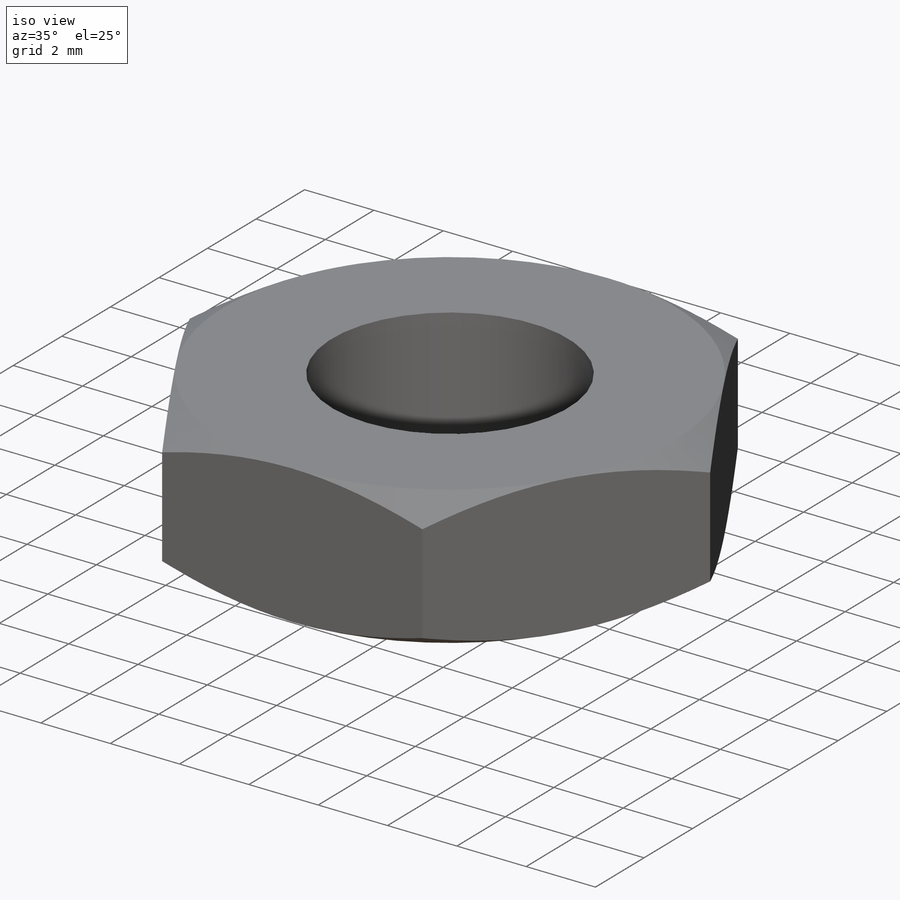
[diagram: iso view]
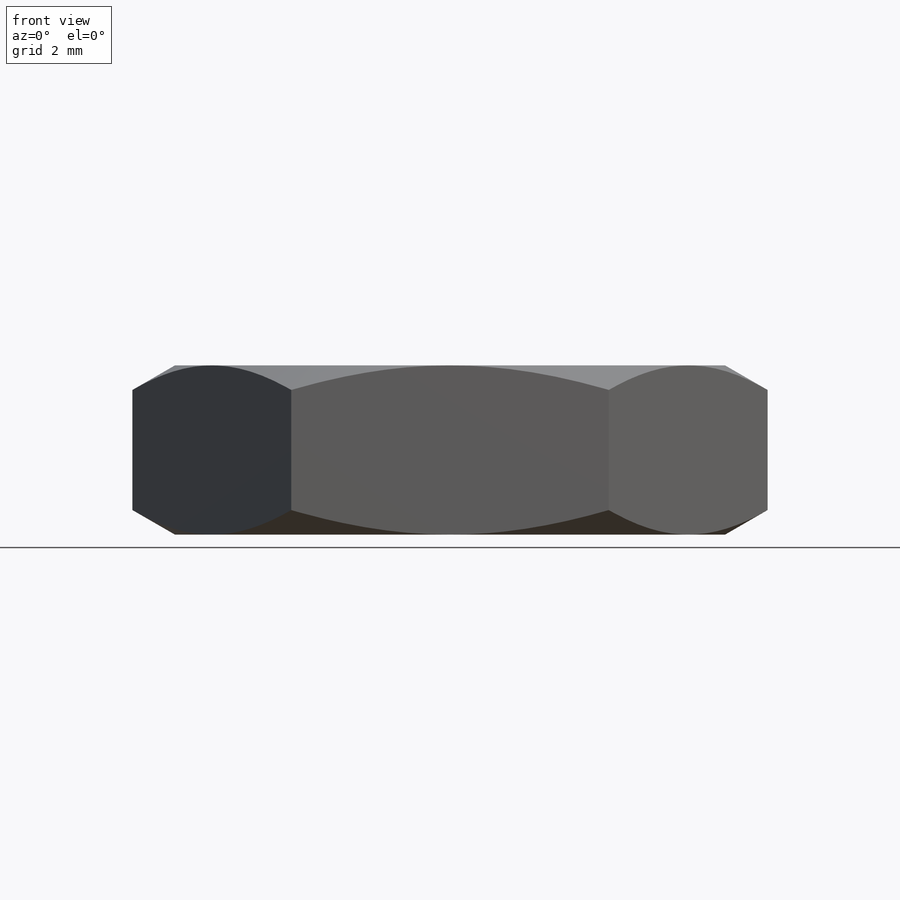
[diagram: front view]
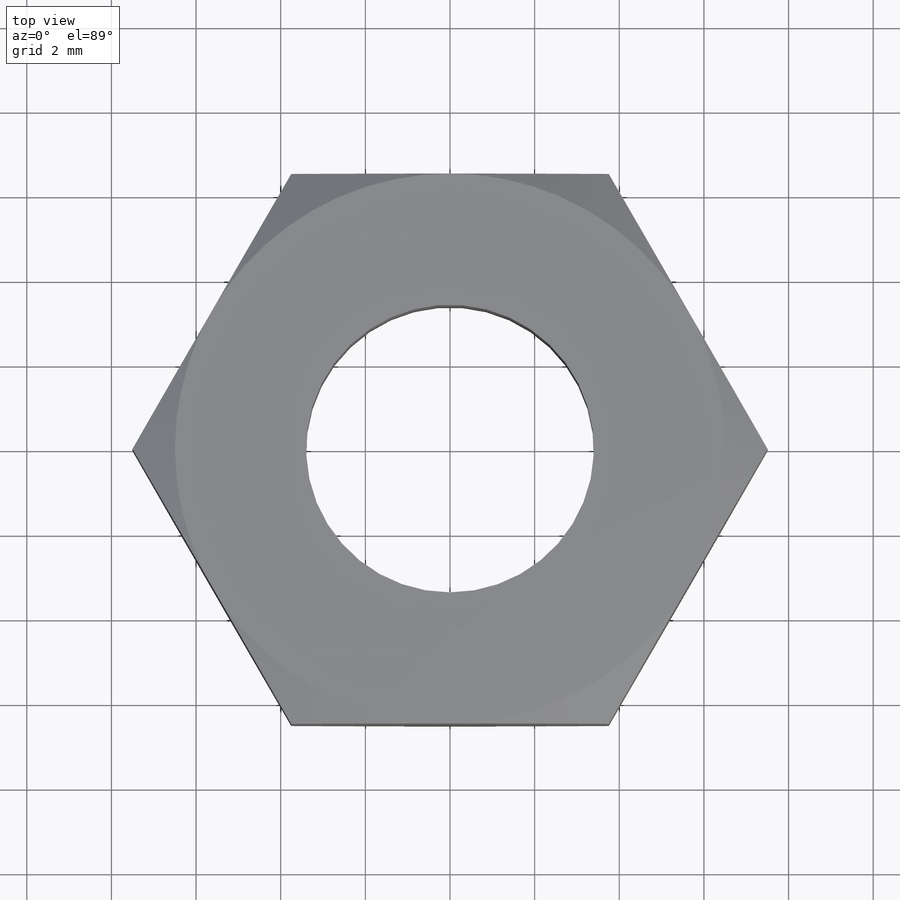
[diagram: top view]
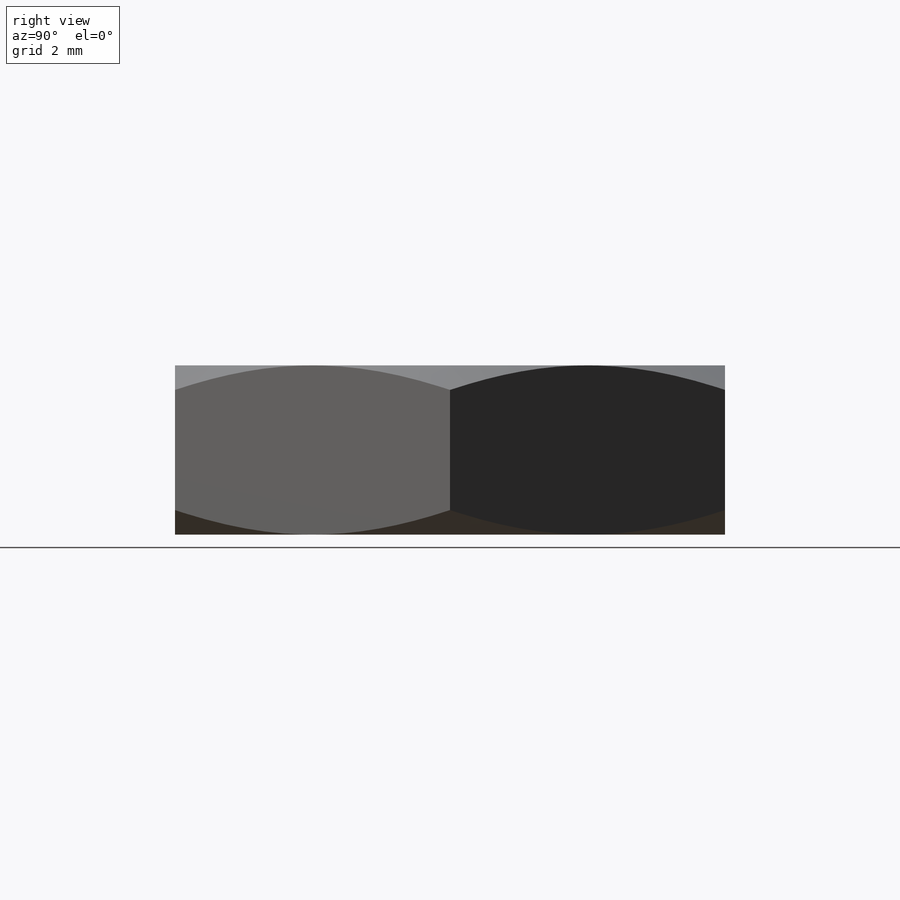
[diagram: right view]
SOLIDWORKS PART (.sldprt)
format: sldprt  version: not decoded by parser v0  size: 207,360 bytes
history: native  units: mm
features: sketch x5, cut_extrude x2, material x1, extrude x1, hole x1, thread x1 (+12 scaffold rows collapsed)
feature tree (23):
  scaffold x12  (default folders/planes/origin — collapsed)
  material  "Material <not specified>"
  sketch  "Sketch1"  dims[D1=13.0mm]
  extrude  "Boss-Extrude1"  Depth=4mm
  sketch  "Sketch2"
  cut_extrude  "Cut-Extrude1"  Depth=4mm
  sketch  "Sketch3"
  cut_extrude  "Cut-Extrude2"  Depth=4mm
  hole  "M8x1.25 Tapped Hole1"  [1 undecoded]
  sketch  "Sketch6"
  thread  "Hole Thread1"  Diameter=8mm  [1 undecoded]
  sketch  "Sketch5"  dims[hole-wizard template sketch: 60 standard entries collapsed; hole parameters kept: c18.Thru Tap Drill Depth=4.0mm]
decode coverage: 6 of 10 modeling features carry decoded parameters
note: ~ marks probable driven/reference dimensions
note: 2 parameter values undecoded
note: suppression state not decoded; provenance and decode notes live in map.json
